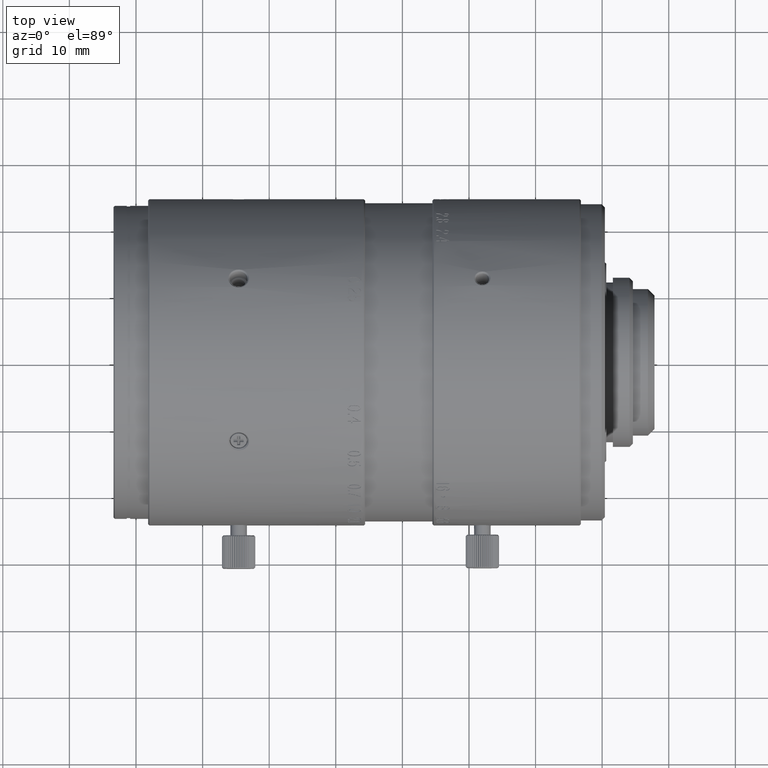
[diagram: clean part render]
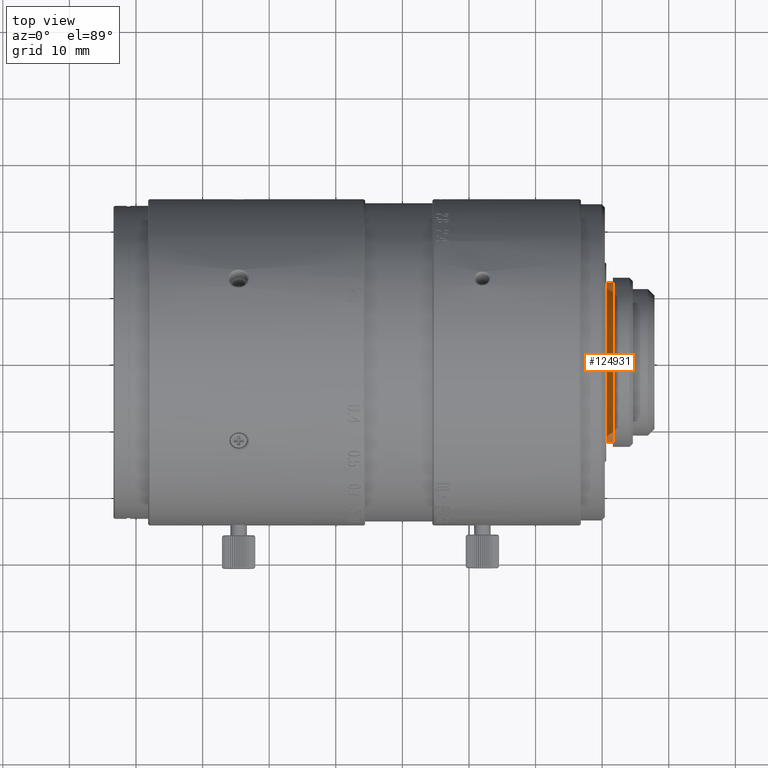
[diagram: same view with one face highlighted and labeled with its STEP entity id]
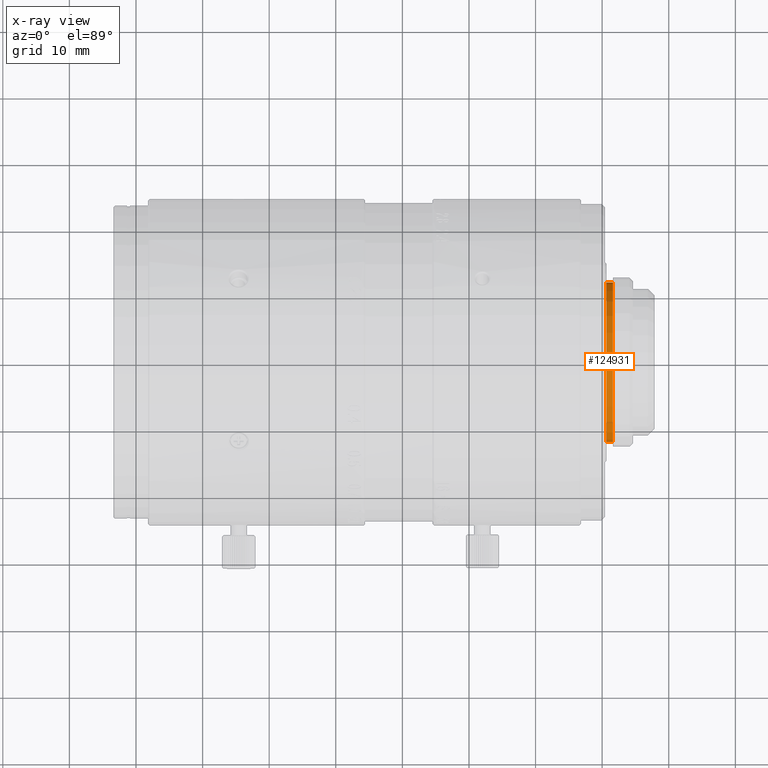
[diagram: x-ray of the same camera — body ghosted, the highlighted face saturated]
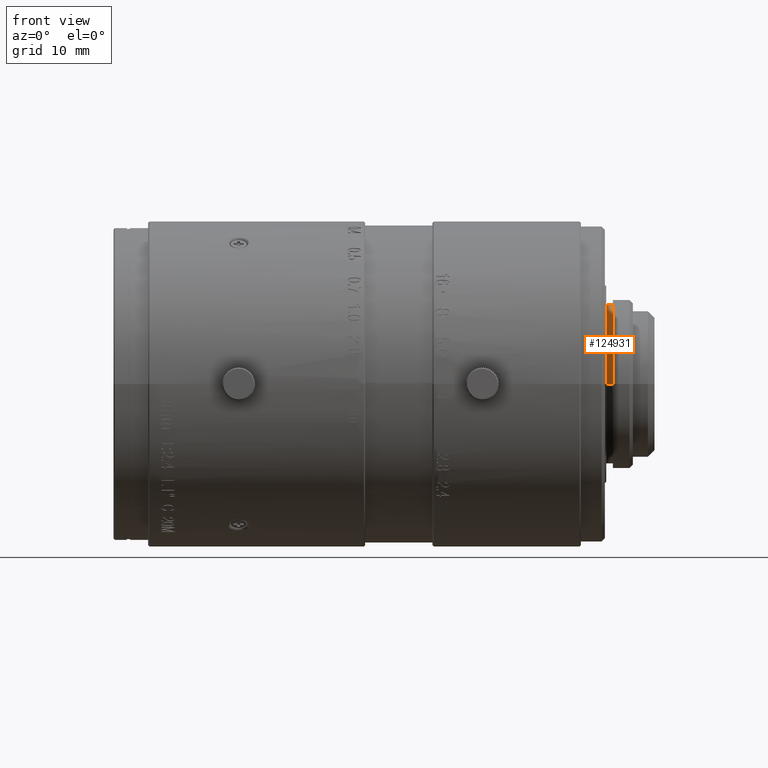
[diagram: same view with one face highlighted and labeled with its STEP entity id]
A machine part, top view. The second image highlights one B-rep face of the part: STEP entity #124931.
The next image is the same camera in x-ray: the body ghosted, the highlighted face saturated — about 0% of this face is hidden behind the body in this view.
A second angle (front view) of the same face is appended — the face is thin or edge-on in the first view.
In plain terms, the highlighted cylindrical surface (partial cylindrical patch) has radius 12 mm, axis along (-1, 0, 0).
Its self-contained STEP definition (entity closure, byte-faithful):
#2466 = VERTEX_POINT ( 'NONE', #15346 ) ;
#2580 = DIRECTION ( 'NONE',  ( 1.000000000000000000, 0.000000000000000000, 0.000000000000000000 ) ) ;
#7072 = DIRECTION ( 'NONE',  ( 0.000000000000000000, -1.000000000000000000, -2.531308496145000031E-14 ) ) ;
#7555 = EDGE_CURVE ( 'NONE', #130604, #2466, #9060, .T. ) ;
#9060 = CIRCLE ( 'NONE', #11285, 12.00000000000000000 ) ;
#11285 = AXIS2_PLACEMENT_3D ( 'NONE', #95361, #18261, #50092 ) ;
#15346 = CARTESIAN_POINT ( 'NONE',  ( 0.6130000000000001004, 12.00000000000000000, 0.000000000000000000 ) ) ;
#18261 = DIRECTION ( 'NONE',  ( -1.000000000000000000, 0.000000000000000000, 0.000000000000000000 ) ) ;
#21285 = ORIENTED_EDGE ( 'NONE', *, *, #61787, .T. ) ;
#23787 = CARTESIAN_POINT ( 'NONE',  ( 0.6130000000000001004, -12.00000000000000000, 0.000000000000000000 ) ) ;
#24601 = EDGE_CURVE ( 'NONE', #107449, #2466, #34056, .T. ) ;
#25088 = VECTOR ( 'NONE', #2580, 1000.000000000000000 ) ;
#28991 = AXIS2_PLACEMENT_3D ( 'NONE', #135889, #135170, #7072 ) ;
#34056 = LINE ( 'NONE', #90621, #113001 ) ;
#40985 = DIRECTION ( 'NONE',  ( 0.000000000000000000, -1.000000000000000000, -2.531308496145000031E-14 ) ) ;
#50092 = DIRECTION ( 'NONE',  ( 0.000000000000000000, -1.000000000000000000, -2.531308496145000031E-14 ) ) ;
#52064 = ORIENTED_EDGE ( 'NONE', *, *, #70693, .T. ) ;
#57340 = CARTESIAN_POINT ( 'NONE',  ( 0.6130000000000001004, -12.00000000000000000, 0.000000000000000000 ) ) ;
#57596 = VERTEX_POINT ( 'NONE', #138301 ) ;
#61787 = EDGE_CURVE ( 'NONE', #57596, #107449, #92246, .T. ) ;
#62189 = CYLINDRICAL_SURFACE ( 'NONE', #120297, 12.00000000000000000 ) ;
#70693 = EDGE_CURVE ( 'NONE', #130604, #57596, #77585, .T. ) ;
#77585 = LINE ( 'NONE', #23787, #25088 ) ;
#90621 = CARTESIAN_POINT ( 'NONE',  ( 1.612999999999999989, 12.00000000000000000, 0.000000000000000000 ) ) ;
#92246 = CIRCLE ( 'NONE', #28991, 12.00000000000000000 ) ;
#93357 = DIRECTION ( 'NONE',  ( -1.000000000000000000, 0.000000000000000000, 0.000000000000000000 ) ) ;
#95120 = CARTESIAN_POINT ( 'NONE',  ( 1.612999999999999989, 12.00000000000000000, 0.000000000000000000 ) ) ;
#95361 = CARTESIAN_POINT ( 'NONE',  ( 0.6130000000000001004, 0.000000000000000000, 3.037570195374000164E-13 ) ) ;
#97700 = EDGE_LOOP ( 'NONE', ( #110859, #52064, #21285, #117790 ) ) ;
#103272 = FACE_OUTER_BOUND ( 'NONE', #97700, .T. ) ;
#107449 = VERTEX_POINT ( 'NONE', #95120 ) ;
#110859 = ORIENTED_EDGE ( 'NONE', *, *, #7555, .F. ) ;
#113001 = VECTOR ( 'NONE', #120393, 1000.000000000000000 ) ;
#117790 = ORIENTED_EDGE ( 'NONE', *, *, #24601, .T. ) ;
#120297 = AXIS2_PLACEMENT_3D ( 'NONE', #137927, #93357, #40985 ) ;
#120393 = DIRECTION ( 'NONE',  ( -1.000000000000000000, 0.000000000000000000, 0.000000000000000000 ) ) ;
#124931 = ADVANCED_FACE ( 'NONE', ( #103272 ), #62189, .T. ) ;
#130604 = VERTEX_POINT ( 'NONE', #57340 ) ;
#135170 = DIRECTION ( 'NONE',  ( -1.000000000000000000, 0.000000000000000000, 0.000000000000000000 ) ) ;
#135889 = CARTESIAN_POINT ( 'NONE',  ( 1.612999999999999989, 0.000000000000000000, 3.037570195374000164E-13 ) ) ;
#137927 = CARTESIAN_POINT ( 'NONE',  ( 1.112999999999999989, 0.000000000000000000, 3.037570195374000164E-13 ) ) ;
#138301 = CARTESIAN_POINT ( 'NONE',  ( 1.612999999999999989, -12.00000000000000000, 0.000000000000000000 ) ) ;